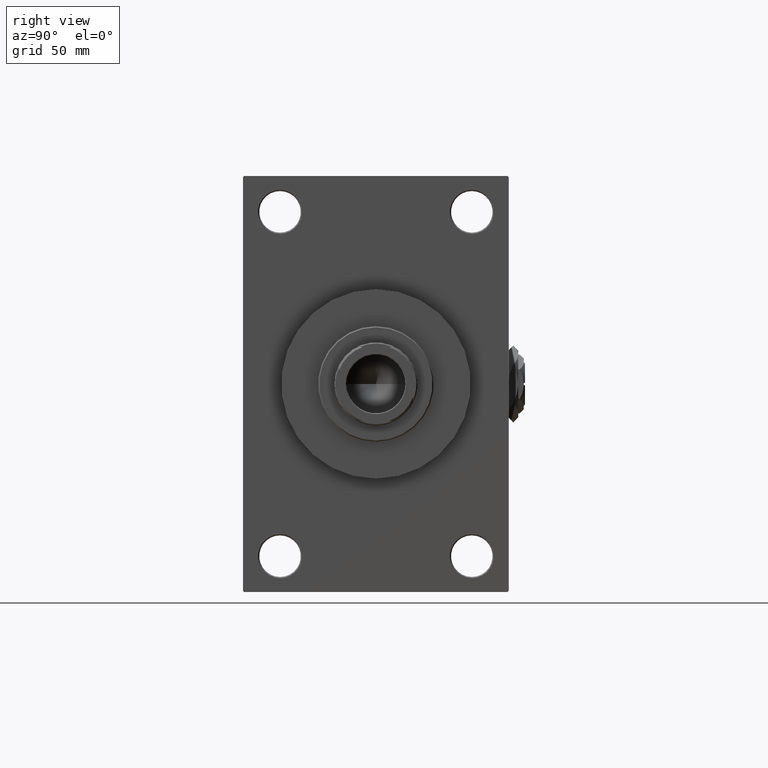
[diagram: clean part render]
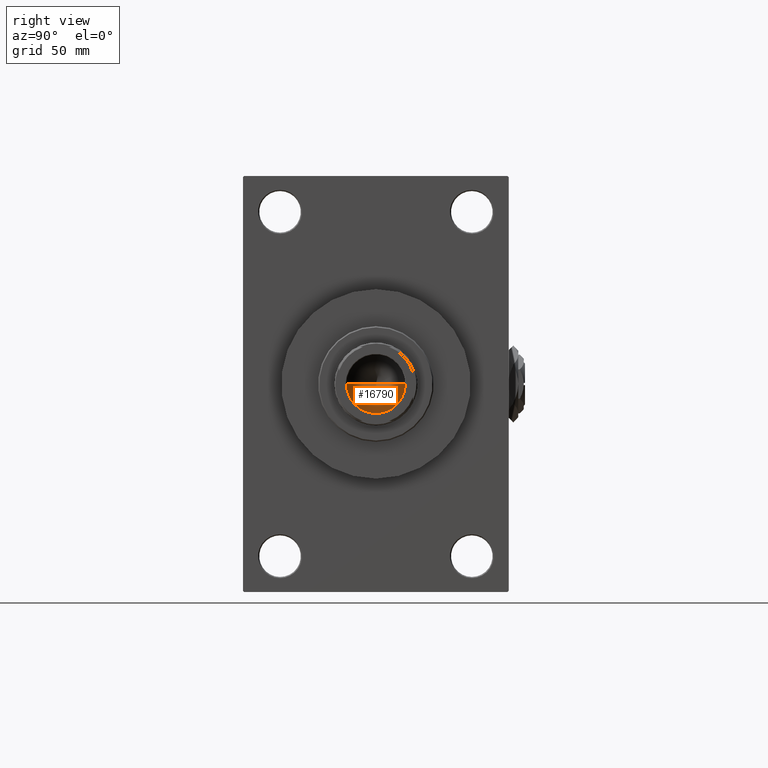
[diagram: same view with one face highlighted and labeled with its STEP entity id]
A machine part, right view. The second image highlights one B-rep face of the part: STEP entity #16790.
In plain terms, the highlighted conical surface has half-angle 59 deg.
Its self-contained STEP definition (entity closure, byte-faithful):
#45 = ORIENTED_EDGE ( 'NONE', *, *, #3245, .T. ) ;
#483 = DIRECTION ( 'NONE',  ( -0.000000000000000000, -0.000000000000000000, 1.000000000000000000 ) ) ;
#2721 = VECTOR ( 'NONE', #32895, 1000.000000000000000 ) ;
#3091 = DIRECTION ( 'NONE',  ( -0.8571673007021117785, 1.049727191138617956E-16, 0.5150380749100550437 ) ) ;
#3245 = EDGE_CURVE ( 'NONE', #15054, #46186, #34109, .T. ) ;
#3330 = FACE_OUTER_BOUND ( 'NONE', #29836, .T. ) ;
#8430 = DIRECTION ( 'NONE',  ( 1.000000000000000000, 0.000000000000000000, 0.000000000000000000 ) ) ;
#10028 = ORIENTED_EDGE ( 'NONE', *, *, #30568, .F. ) ;
#10294 = CARTESIAN_POINT ( 'NONE',  ( 12.74999999999998934, 0.000000000000000000, 121.0000000000000142 ) ) ;
#10426 = ORIENTED_EDGE ( 'NONE', *, *, #24244, .T. ) ;
#11111 = AXIS2_PLACEMENT_3D ( 'NONE', #46180, #483, #8430 ) ;
#15054 = VERTEX_POINT ( 'NONE', #42822 ) ;
#16790 = ADVANCED_FACE ( 'NONE', ( #3330 ), #31340, .F. ) ;
#18470 = DIRECTION ( 'NONE',  ( -0.000000000000000000, -0.000000000000000000, 1.000000000000000000 ) ) ;
#23522 = VECTOR ( 'NONE', #3091, 1000.000000000000000 ) ;
#24244 = EDGE_CURVE ( 'NONE', #30965, #15054, #40105, .T. ) ;
#25425 = DIRECTION ( 'NONE',  ( 1.000000000000000000, 0.000000000000000000, 0.000000000000000000 ) ) ;
#25430 = LINE ( 'NONE', #29668, #23522 ) ;
#29668 = CARTESIAN_POINT ( 'NONE',  ( -12.74999999999998934, 1.561424668912873928E-15, 121.0000000000000142 ) ) ;
#29836 = EDGE_LOOP ( 'NONE', ( #10028, #10426, #45 ) ) ;
#30568 = EDGE_CURVE ( 'NONE', #30965, #46186, #25430, .T. ) ;
#30965 = VERTEX_POINT ( 'NONE', #34055 ) ;
#31340 = CONICAL_SURFACE ( 'NONE', #39295, 12.74999999999998934, 1.029744258676653423 ) ;
#32135 = CARTESIAN_POINT ( 'NONE',  ( -12.74999999999998934, 1.561424668912873928E-15, 121.0000000000000142 ) ) ;
#32622 = CARTESIAN_POINT ( 'NONE',  ( 0.000000000000000000, 0.000000000000000000, 121.0000000000000142 ) ) ;
#32895 = DIRECTION ( 'NONE',  ( 0.8571673007021117785, 0.000000000000000000, 0.5150380749100550437 ) ) ;
#34055 = CARTESIAN_POINT ( 'NONE',  ( -1.410643066818227497E-14, 0.000000000000000000, 113.3390271073986071 ) ) ;
#34109 = CIRCLE ( 'NONE', #11111, 12.74999999999998934 ) ;
#39295 = AXIS2_PLACEMENT_3D ( 'NONE', #32622, #18470, #25425 ) ;
#40105 = LINE ( 'NONE', #10294, #2721 ) ;
#42822 = CARTESIAN_POINT ( 'NONE',  ( 12.74999999999998934, 0.000000000000000000, 121.0000000000000142 ) ) ;
#46180 = CARTESIAN_POINT ( 'NONE',  ( 0.000000000000000000, 0.000000000000000000, 121.0000000000000142 ) ) ;
#46186 = VERTEX_POINT ( 'NONE', #32135 ) ;